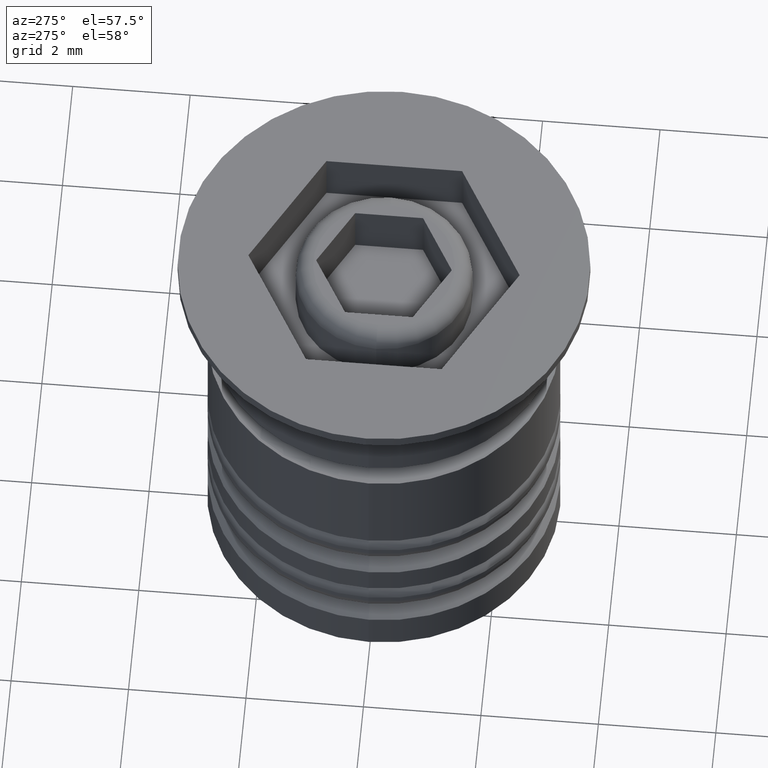
[diagram: clean part render]
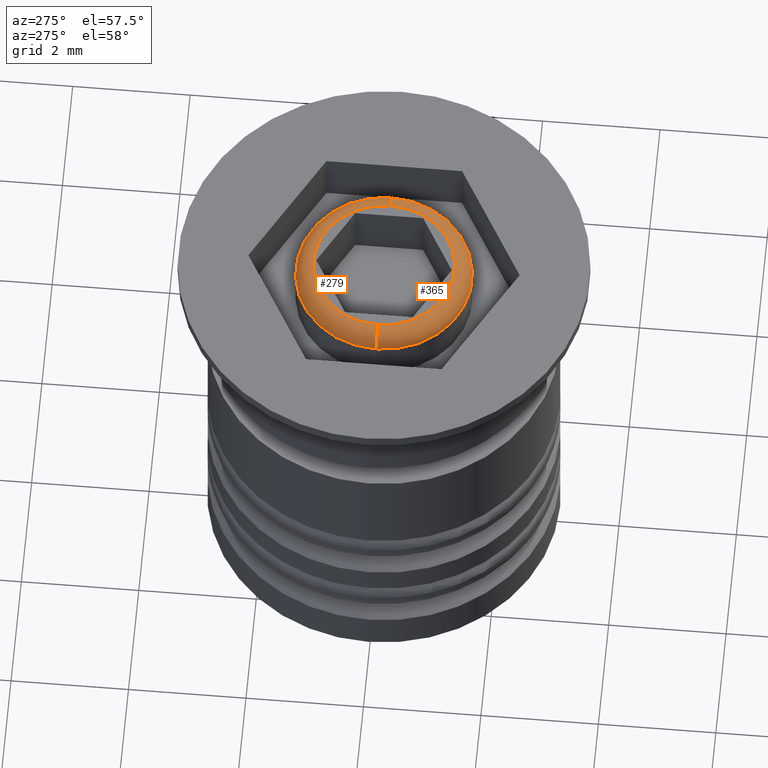
[diagram: same view with one multi-face feature highlighted, each face labeled with its STEP entity id]
A machine part, auxiliary view. The highlighted faces form ONE feature: a constant-radius fillet chain: 2 tangent blend faces with common blend radius 0.3 mm. The faces share edges in the B-rep.
Their STEP definitions:
[1] entity #365 (Torus):
#20 = DIRECTION ( 'NONE',  ( -1.000000000000000000, 1.224646799147353207E-16, 0.000000000000000000 ) ) ;
#30 = CARTESIAN_POINT ( 'NONE',  ( -1.200000000000000400, 1.469576158976824046E-16, -0.2999999999999999334 ) ) ;
#91 = CIRCLE ( 'NONE', #1120, 0.2999999999999999334 ) ;
#126 = CARTESIAN_POINT ( 'NONE',  ( 1.500000000000000222, 1.836970198721030181E-16, -0.2999999999999999334 ) ) ;
#250 = CARTESIAN_POINT ( 'NONE',  ( -1.500000000000000222, 0.000000000000000000, -0.2999999999999999334 ) ) ;
#300 = EDGE_CURVE ( 'NONE', #483, #541, #402, .T. ) ;
#305 = CARTESIAN_POINT ( 'NONE',  ( 1.200000000000000400, 0.000000000000000000, -0.2999999999999999334 ) ) ;
#331 = ORIENTED_EDGE ( 'NONE', *, *, #1514, .T. ) ;
#365 = ADVANCED_FACE ( 'NONE', ( #1460 ), #472, .T. ) ;
#402 = CIRCLE ( 'NONE', #1030, 1.200000000000000400 ) ;
#472 = TOROIDAL_SURFACE ( 'NONE', #589, 1.200000000000000400, 0.2999999999999999889 ) ;
#483 = VERTEX_POINT ( 'NONE', #667 ) ;
#494 = CARTESIAN_POINT ( 'NONE',  ( 0.000000000000000000, 0.000000000000000000, -0.2999999999999999334 ) ) ;
#541 = VERTEX_POINT ( 'NONE', #1791 ) ;
#569 = ORIENTED_EDGE ( 'NONE', *, *, #1515, .F. ) ;
#589 = AXIS2_PLACEMENT_3D ( 'NONE', #494, #768, #748 ) ;
#667 = CARTESIAN_POINT ( 'NONE',  ( -1.200000000000000400, 1.653273178848927113E-16, 0.000000000000000000 ) ) ;
#731 = DIRECTION ( 'NONE',  ( 0.000000000000000000, -1.000000000000000000, 0.000000000000000000 ) ) ;
#748 = DIRECTION ( 'NONE',  ( 1.000000000000000000, 0.000000000000000000, 0.000000000000000000 ) ) ;
#765 = AXIS2_PLACEMENT_3D ( 'NONE', #305, #731, #1040 ) ;
#768 = DIRECTION ( 'NONE',  ( -0.000000000000000000, -0.000000000000000000, 1.000000000000000000 ) ) ;
#780 = VERTEX_POINT ( 'NONE', #250 ) ;
#833 = EDGE_CURVE ( 'NONE', #1649, #780, #1538, .T. ) ;
#858 = CARTESIAN_POINT ( 'NONE',  ( 0.000000000000000000, 0.000000000000000000, 0.000000000000000000 ) ) ;
#945 = CIRCLE ( 'NONE', #765, 0.2999999999999999334 ) ;
#1030 = AXIS2_PLACEMENT_3D ( 'NONE', #858, #1396, #1816 ) ;
#1040 = DIRECTION ( 'NONE',  ( 0.000000000000000000, 0.000000000000000000, -1.000000000000000000 ) ) ;
#1120 = AXIS2_PLACEMENT_3D ( 'NONE', #30, #1293, #20 ) ;
#1253 = DIRECTION ( 'NONE',  ( 1.000000000000000000, 0.000000000000000000, 0.000000000000000000 ) ) ;
#1293 = DIRECTION ( 'NONE',  ( 1.224646799147353207E-16, 1.000000000000000000, 0.000000000000000000 ) ) ;
#1339 = ORIENTED_EDGE ( 'NONE', *, *, #833, .F. ) ;
#1354 = ORIENTED_EDGE ( 'NONE', *, *, #300, .F. ) ;
#1396 = DIRECTION ( 'NONE',  ( -0.000000000000000000, -0.000000000000000000, 1.000000000000000000 ) ) ;
#1431 = EDGE_LOOP ( 'NONE', ( #569, #1339, #331, #1354 ) ) ;
#1460 = FACE_OUTER_BOUND ( 'NONE', #1431, .T. ) ;
#1514 = EDGE_CURVE ( 'NONE', #1649, #541, #945, .T. ) ;
#1515 = EDGE_CURVE ( 'NONE', #780, #483, #91, .T. ) ;
#1538 = CIRCLE ( 'NONE', #1571, 1.500000000000000222 ) ;
#1571 = AXIS2_PLACEMENT_3D ( 'NONE', #1825, #1667, #1253 ) ;
#1649 = VERTEX_POINT ( 'NONE', #126 ) ;
#1667 = DIRECTION ( 'NONE',  ( 0.000000000000000000, 0.000000000000000000, -1.000000000000000000 ) ) ;
#1791 = CARTESIAN_POINT ( 'NONE',  ( 1.200000000000000400, 0.000000000000000000, 0.000000000000000000 ) ) ;
#1816 = DIRECTION ( 'NONE',  ( 1.000000000000000000, 0.000000000000000000, 0.000000000000000000 ) ) ;
#1825 = CARTESIAN_POINT ( 'NONE',  ( 0.000000000000000000, 0.000000000000000000, -0.2999999999999999334 ) ) ;
[2] entity #279 (Torus):
#20 = DIRECTION ( 'NONE',  ( -1.000000000000000000, 1.224646799147353207E-16, 0.000000000000000000 ) ) ;
#30 = CARTESIAN_POINT ( 'NONE',  ( -1.200000000000000400, 1.469576158976824046E-16, -0.2999999999999999334 ) ) ;
#59 = ORIENTED_EDGE ( 'NONE', *, *, #386, .F. ) ;
#73 = DIRECTION ( 'NONE',  ( 1.000000000000000000, 0.000000000000000000, 0.000000000000000000 ) ) ;
#83 = CIRCLE ( 'NONE', #1508, 1.200000000000000400 ) ;
#91 = CIRCLE ( 'NONE', #1120, 0.2999999999999999334 ) ;
#126 = CARTESIAN_POINT ( 'NONE',  ( 1.500000000000000222, 1.836970198721030181E-16, -0.2999999999999999334 ) ) ;
#250 = CARTESIAN_POINT ( 'NONE',  ( -1.500000000000000222, 0.000000000000000000, -0.2999999999999999334 ) ) ;
#279 = ADVANCED_FACE ( 'NONE', ( #1539 ), #292, .T. ) ;
#292 = TOROIDAL_SURFACE ( 'NONE', #1634, 1.200000000000000400, 0.2999999999999999889 ) ;
#305 = CARTESIAN_POINT ( 'NONE',  ( 1.200000000000000400, 0.000000000000000000, -0.2999999999999999334 ) ) ;
#310 = DIRECTION ( 'NONE',  ( -0.000000000000000000, -0.000000000000000000, 1.000000000000000000 ) ) ;
#376 = ORIENTED_EDGE ( 'NONE', *, *, #1514, .F. ) ;
#386 = EDGE_CURVE ( 'NONE', #541, #483, #83, .T. ) ;
#420 = DIRECTION ( 'NONE',  ( 0.000000000000000000, 0.000000000000000000, -1.000000000000000000 ) ) ;
#483 = VERTEX_POINT ( 'NONE', #667 ) ;
#541 = VERTEX_POINT ( 'NONE', #1791 ) ;
#583 = DIRECTION ( 'NONE',  ( 1.000000000000000000, 0.000000000000000000, 0.000000000000000000 ) ) ;
#604 = DIRECTION ( 'NONE',  ( -0.000000000000000000, -0.000000000000000000, 1.000000000000000000 ) ) ;
#667 = CARTESIAN_POINT ( 'NONE',  ( -1.200000000000000400, 1.653273178848927113E-16, 0.000000000000000000 ) ) ;
#695 = CARTESIAN_POINT ( 'NONE',  ( 0.000000000000000000, 0.000000000000000000, -0.2999999999999999334 ) ) ;
#706 = AXIS2_PLACEMENT_3D ( 'NONE', #695, #420, #1687 ) ;
#731 = DIRECTION ( 'NONE',  ( 0.000000000000000000, -1.000000000000000000, 0.000000000000000000 ) ) ;
#765 = AXIS2_PLACEMENT_3D ( 'NONE', #305, #731, #1040 ) ;
#780 = VERTEX_POINT ( 'NONE', #250 ) ;
#913 = CIRCLE ( 'NONE', #706, 1.500000000000000222 ) ;
#945 = CIRCLE ( 'NONE', #765, 0.2999999999999999334 ) ;
#968 = ORIENTED_EDGE ( 'NONE', *, *, #1515, .T. ) ;
#1040 = DIRECTION ( 'NONE',  ( 0.000000000000000000, 0.000000000000000000, -1.000000000000000000 ) ) ;
#1120 = AXIS2_PLACEMENT_3D ( 'NONE', #30, #1293, #20 ) ;
#1200 = CARTESIAN_POINT ( 'NONE',  ( 0.000000000000000000, 0.000000000000000000, 0.000000000000000000 ) ) ;
#1293 = DIRECTION ( 'NONE',  ( 1.224646799147353207E-16, 1.000000000000000000, 0.000000000000000000 ) ) ;
#1384 = EDGE_LOOP ( 'NONE', ( #1467, #968, #59, #376 ) ) ;
#1467 = ORIENTED_EDGE ( 'NONE', *, *, #1635, .F. ) ;
#1508 = AXIS2_PLACEMENT_3D ( 'NONE', #1200, #604, #73 ) ;
#1514 = EDGE_CURVE ( 'NONE', #1649, #541, #945, .T. ) ;
#1515 = EDGE_CURVE ( 'NONE', #780, #483, #91, .T. ) ;
#1539 = FACE_OUTER_BOUND ( 'NONE', #1384, .T. ) ;
#1634 = AXIS2_PLACEMENT_3D ( 'NONE', #1670, #310, #583 ) ;
#1635 = EDGE_CURVE ( 'NONE', #780, #1649, #913, .T. ) ;
#1649 = VERTEX_POINT ( 'NONE', #126 ) ;
#1670 = CARTESIAN_POINT ( 'NONE',  ( 0.000000000000000000, 0.000000000000000000, -0.2999999999999999334 ) ) ;
#1687 = DIRECTION ( 'NONE',  ( 1.000000000000000000, 0.000000000000000000, 0.000000000000000000 ) ) ;
#1791 = CARTESIAN_POINT ( 'NONE',  ( 1.200000000000000400, 0.000000000000000000, 0.000000000000000000 ) ) ;